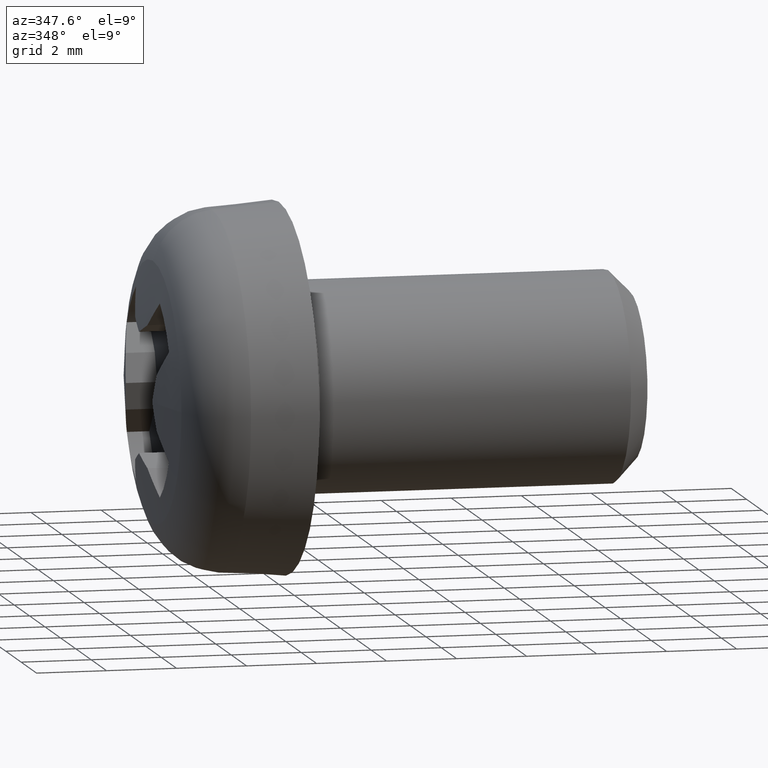
[diagram: clean part render]
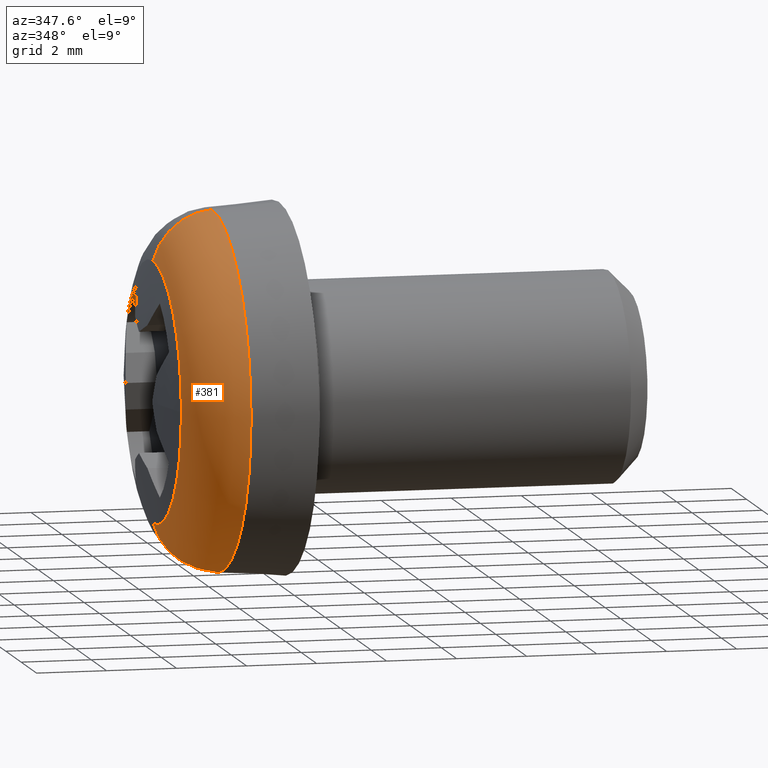
[diagram: same view with one face highlighted and labeled with its STEP entity id]
A machine part, auxiliary view. The second image highlights one B-rep face of the part: STEP entity #381.
In plain terms, the highlighted toroidal blend (fillet) surface has major radius 3.2056 mm and minor (blend) radius 1.9 mm.
Its self-contained STEP definition (entity closure, byte-faithful):
#30 = CIRCLE ( 'NONE', #910, 1.900000000017910000 ) ;
#42 = DIRECTION ( 'NONE',  ( 0.0000000000000000000, 0.0000000000000000000, -1.000000000000000000 ) ) ;
#53 = DIRECTION ( 'NONE',  ( 0.0000000000000000000, 0.0000000000000000000, -1.000000000000000000 ) ) ;
#79 = CARTESIAN_POINT ( 'NONE',  ( -1.767655783093902100, 0.0000000000000000000, 0.0000000000000000000 ) ) ;
#81 = DIRECTION ( 'NONE',  ( 0.0000000000000000000, 1.000000000000000000, -1.224646799147353200E-016 ) ) ;
#99 = ORIENTED_EDGE ( 'NONE', *, *, #1262, .T. ) ;
#118 = CARTESIAN_POINT ( 'NONE',  ( -3.599767021786166100, -3.708947338086201500, 4.542150485793362700E-016 ) ) ;
#131 = VERTEX_POINT ( 'NONE', #385 ) ;
#181 = EDGE_LOOP ( 'NONE', ( #853, #99, #1111, #1170, #664 ) ) ;
#234 = DIRECTION ( 'NONE',  ( 1.000000000000000000, -0.0000000000000000000, -0.0000000000000000000 ) ) ;
#246 = DIRECTION ( 'NONE',  ( -0.0000000000000000000, -1.000000000000000000, -0.0000000000000000000 ) ) ;
#312 = CIRCLE ( 'NONE', #663, 1.900000000017910000 ) ;
#316 = EDGE_CURVE ( 'NONE', #769, #131, #312, .T. ) ;
#335 = CARTESIAN_POINT ( 'NONE',  ( -3.599767021786167000, 0.0000000000000000000, 0.0000000000000000000 ) ) ;
#352 = VERTEX_POINT ( 'NONE', #1022 ) ;
#358 = CARTESIAN_POINT ( 'NONE',  ( -3.599767021786167000, 5.393788712642540300E-016, 3.708947338086202800 ) ) ;
#381 = ADVANCED_FACE ( 'NONE', ( #696 ), #915, .T. ) ;
#385 = CARTESIAN_POINT ( 'NONE',  ( -1.916155469825908900, 6.337411317529574100E-016, 5.099778110586681700 ) ) ;
#421 = VERTEX_POINT ( 'NONE', #118 ) ;
#508 = DIRECTION ( 'NONE',  ( 1.000000000000000000, -0.0000000000000000000, -0.0000000000000000000 ) ) ;
#512 = CARTESIAN_POINT ( 'NONE',  ( -3.599767021786167000, 0.0000000000000000000, 0.0000000000000000000 ) ) ;
#582 = DIRECTION ( 'NONE',  ( 1.000000000000000000, -0.0000000000000000000, -0.0000000000000000000 ) ) ;
#589 = AXIS2_PLACEMENT_3D ( 'NONE', #615, #582, #53 ) ;
#615 = CARTESIAN_POINT ( 'NONE',  ( -1.916155469825908900, 0.0000000000000000000, 0.0000000000000000000 ) ) ;
#622 = DIRECTION ( 'NONE',  ( 0.0000000000000000000, 0.0000000000000000000, -1.000000000000000000 ) ) ;
#645 = VERTEX_POINT ( 'NONE', #966 ) ;
#663 = AXIS2_PLACEMENT_3D ( 'NONE', #1284, #81, #717 ) ;
#664 = ORIENTED_EDGE ( 'NONE', *, *, #694, .F. ) ;
#694 = EDGE_CURVE ( 'NONE', #131, #352, #1197, .T. ) ;
#696 = FACE_OUTER_BOUND ( 'NONE', #181, .T. ) ;
#717 = DIRECTION ( 'NONE',  ( 0.0000000000000000000, 1.224646799147353500E-016, 1.000000000000000000 ) ) ;
#721 = CIRCLE ( 'NONE', #724, 3.708947338086202400 ) ;
#724 = AXIS2_PLACEMENT_3D ( 'NONE', #335, #234, #42 ) ;
#769 = VERTEX_POINT ( 'NONE', #358 ) ;
#775 = EDGE_CURVE ( 'NONE', #421, #645, #721, .T. ) ;
#795 = DIRECTION ( 'NONE',  ( 0.0000000000000000000, 0.0000000000000000000, -1.000000000000000000 ) ) ;
#800 = AXIS2_PLACEMENT_3D ( 'NONE', #79, #508, #795 ) ;
#853 = ORIENTED_EDGE ( 'NONE', *, *, #316, .F. ) ;
#855 = EDGE_CURVE ( 'NONE', #645, #352, #30, .T. ) ;
#872 = DIRECTION ( 'NONE',  ( 0.0000000000000000000, 0.0000000000000000000, -1.000000000000000000 ) ) ;
#910 = AXIS2_PLACEMENT_3D ( 'NONE', #967, #246, #872 ) ;
#915 = TOROIDAL_SURFACE ( 'NONE', #800, 3.205590199341190600, 1.900000000017910000 ) ;
#966 = CARTESIAN_POINT ( 'NONE',  ( -3.599767021786167000, 0.0000000000000000000, -3.708947338086202800 ) ) ;
#967 = CARTESIAN_POINT ( 'NONE',  ( -1.767655783093902100, 0.0000000000000000000, -3.205590199341190600 ) ) ;
#1022 = CARTESIAN_POINT ( 'NONE',  ( -1.916155469825908900, 0.0000000000000000000, -5.099778110586681700 ) ) ;
#1111 = ORIENTED_EDGE ( 'NONE', *, *, #775, .T. ) ;
#1121 = CIRCLE ( 'NONE', #1261, 3.708947338086202400 ) ;
#1170 = ORIENTED_EDGE ( 'NONE', *, *, #855, .T. ) ;
#1194 = DIRECTION ( 'NONE',  ( 1.000000000000000000, -0.0000000000000000000, -0.0000000000000000000 ) ) ;
#1197 = CIRCLE ( 'NONE', #589, 5.099778110586681700 ) ;
#1261 = AXIS2_PLACEMENT_3D ( 'NONE', #512, #1194, #622 ) ;
#1262 = EDGE_CURVE ( 'NONE', #769, #421, #1121, .T. ) ;
#1284 = CARTESIAN_POINT ( 'NONE',  ( -1.767655783093902100, 3.925715777001315000E-016, 3.205590199341190600 ) ) ;